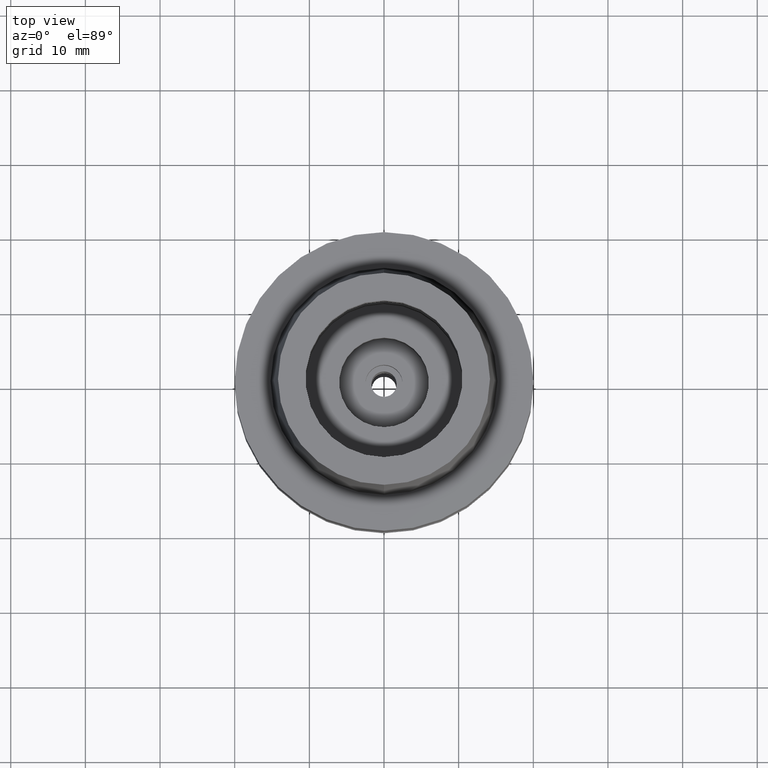
[diagram: clean part render]
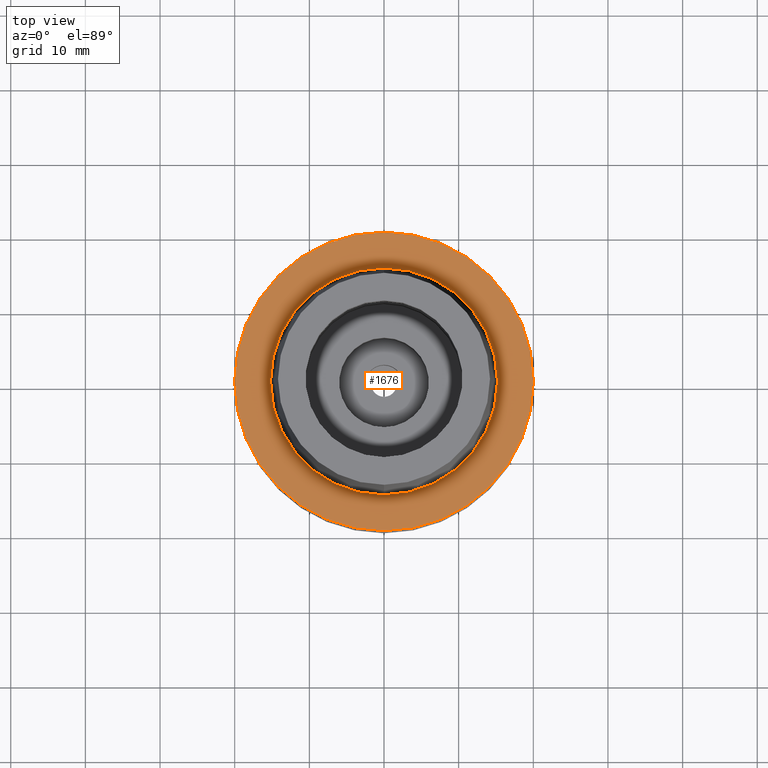
[diagram: same view with one face highlighted and labeled with its STEP entity id]
A machine part, top view. The second image highlights one B-rep face of the part: STEP entity #1676.
In plain terms, the highlighted planar face has unit normal (0, 0, 1).
Its self-contained STEP definition (entity closure, byte-faithful):
#31 = ORIENTED_EDGE ( 'NONE', *, *, #2280, .F. ) ;
#42 = CARTESIAN_POINT ( 'NONE',  ( 0.0000000000000000000, 0.0000000000000000000, -8.526512829120999020E-14 ) ) ;
#261 = DIRECTION ( 'NONE',  ( 1.000000000000000000, 0.0000000000000000000, 0.0000000000000000000 ) ) ;
#407 = AXIS2_PLACEMENT_3D ( 'NONE', #565, #593, #1192 ) ;
#510 = EDGE_LOOP ( 'NONE', ( #2018, #31 ) ) ;
#557 = ORIENTED_EDGE ( 'NONE', *, *, #1282, .F. ) ;
#565 = CARTESIAN_POINT ( 'NONE',  ( 0.0000000000000000000, 0.0000000000000000000, 6.821210263297000155E-13 ) ) ;
#593 = DIRECTION ( 'NONE',  ( 0.0000000000000000000, 0.0000000000000000000, 1.000000000000000000 ) ) ;
#635 = DIRECTION ( 'NONE',  ( 0.0000000000000000000, 0.0000000000000000000, -1.000000000000000000 ) ) ;
#757 = EDGE_CURVE ( 'NONE', #1547, #1027, #1428, .T. ) ;
#876 = PLANE ( 'NONE',  #924 ) ;
#924 = AXIS2_PLACEMENT_3D ( 'NONE', #1718, #2542, #261 ) ;
#925 = EDGE_LOOP ( 'NONE', ( #1352, #557 ) ) ;
#974 = CIRCLE ( 'NONE', #407, 15.19999963424000100 ) ;
#1027 = VERTEX_POINT ( 'NONE', #2353 ) ;
#1058 = CARTESIAN_POINT ( 'NONE',  ( 0.0000000000000000000, 20.00000000000000000, -8.526512829120999020E-14 ) ) ;
#1148 = DIRECTION ( 'NONE',  ( 0.0000000000000000000, -1.000000000000000000, 0.0000000000000000000 ) ) ;
#1192 = DIRECTION ( 'NONE',  ( 0.0000000000000000000, 1.000000000000000000, 0.0000000000000000000 ) ) ;
#1203 = CARTESIAN_POINT ( 'NONE',  ( 0.0000000000000000000, -15.19999963424000100, 3.801403636316999971E-13 ) ) ;
#1242 = AXIS2_PLACEMENT_3D ( 'NONE', #1842, #2492, #2285 ) ;
#1282 = EDGE_CURVE ( 'NONE', #1027, #1547, #1858, .T. ) ;
#1299 = CIRCLE ( 'NONE', #2615, 15.19999963424000100 ) ;
#1352 = ORIENTED_EDGE ( 'NONE', *, *, #757, .F. ) ;
#1428 = CIRCLE ( 'NONE', #1971, 20.00000000000000000 ) ;
#1453 = DIRECTION ( 'NONE',  ( 0.0000000000000000000, 1.000000000000000000, 0.0000000000000000000 ) ) ;
#1499 = FACE_BOUND ( 'NONE', #510, .T. ) ;
#1547 = VERTEX_POINT ( 'NONE', #1058 ) ;
#1551 = DIRECTION ( 'NONE',  ( 0.0000000000000000000, 0.0000000000000000000, 1.000000000000000000 ) ) ;
#1641 = CARTESIAN_POINT ( 'NONE',  ( 0.0000000000000000000, 15.19999963424000100, 3.801403636316999971E-13 ) ) ;
#1676 = ADVANCED_FACE ( 'NONE', ( #1705, #1499 ), #876, .T. ) ;
#1705 = FACE_OUTER_BOUND ( 'NONE', #925, .T. ) ;
#1718 = CARTESIAN_POINT ( 'NONE',  ( 0.0000000000000000000, 0.0000000000000000000, 0.0000000000000000000 ) ) ;
#1755 = CARTESIAN_POINT ( 'NONE',  ( 0.0000000000000000000, 0.0000000000000000000, 6.821210263297000155E-13 ) ) ;
#1842 = CARTESIAN_POINT ( 'NONE',  ( 0.0000000000000000000, 0.0000000000000000000, -8.526512829120999020E-14 ) ) ;
#1858 = CIRCLE ( 'NONE', #1242, 20.00000000000000000 ) ;
#1908 = VERTEX_POINT ( 'NONE', #1203 ) ;
#1928 = VERTEX_POINT ( 'NONE', #1641 ) ;
#1951 = EDGE_CURVE ( 'NONE', #1928, #1908, #974, .T. ) ;
#1971 = AXIS2_PLACEMENT_3D ( 'NONE', #42, #635, #1453 ) ;
#2018 = ORIENTED_EDGE ( 'NONE', *, *, #1951, .F. ) ;
#2280 = EDGE_CURVE ( 'NONE', #1908, #1928, #1299, .T. ) ;
#2285 = DIRECTION ( 'NONE',  ( 0.0000000000000000000, -1.000000000000000000, 0.0000000000000000000 ) ) ;
#2353 = CARTESIAN_POINT ( 'NONE',  ( 0.0000000000000000000, -20.00000000000000000, -8.526512829120999020E-14 ) ) ;
#2492 = DIRECTION ( 'NONE',  ( 0.0000000000000000000, 0.0000000000000000000, -1.000000000000000000 ) ) ;
#2542 = DIRECTION ( 'NONE',  ( 0.0000000000000000000, 0.0000000000000000000, 1.000000000000000000 ) ) ;
#2615 = AXIS2_PLACEMENT_3D ( 'NONE', #1755, #1551, #1148 ) ;